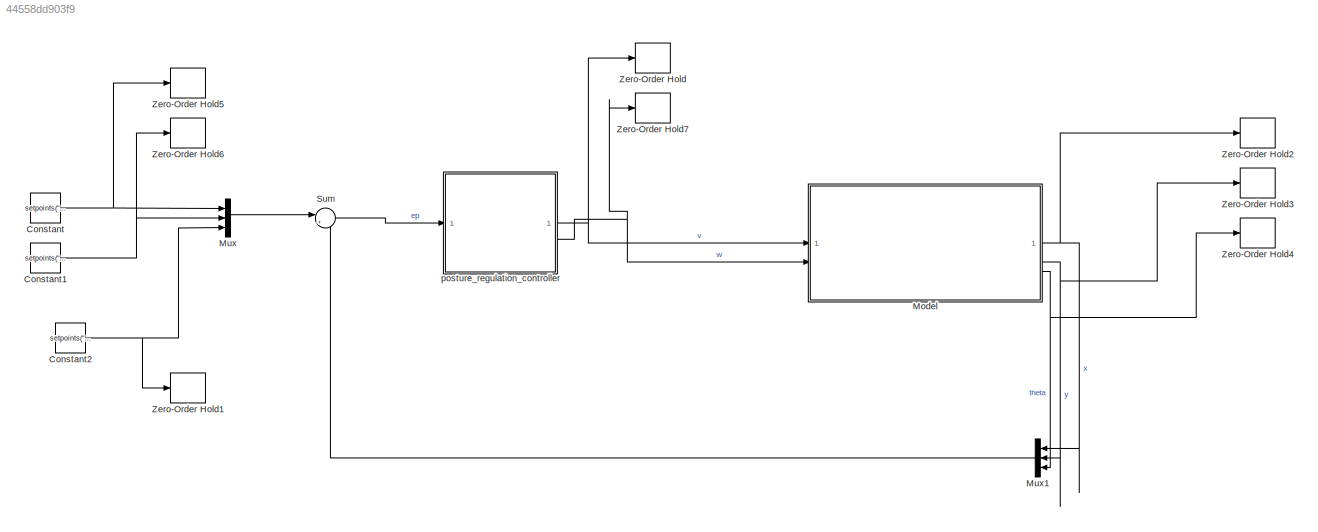
MODEL slx_44558dd903f9
KIND model
CONFIG AbsTol = auto
CONFIG EnableMultiTasking = off
CONFIG FixedStep = auto
CONFIG MaxStep = auto
CONFIG MinStep = auto
CONFIG RelTol = 1e-3
CONFIG SampleTimeConstraint = Unconstrained
CONFIG SolverName = VariableStepAuto
CONFIG StartTime = 0.0
CONFIG StopTime = 10.0
BLOCK [Constant] Constant
  Value = setpoints("setpoint"+sim_trajectory_id).x
BLOCK [Constant] Constant1
  Value = setpoints("setpoint"+sim_trajectory_id).y
BLOCK [Constant] Constant2
  Value = setpoints("setpoint"+sim_trajectory_id).angle
BLOCK [ModelReference] Model
  ModelNameDialog = unicycle.slx
  ModelReferenceVersion = 1.12
  PortSchema = {"entries":[{"content":{"sides":[{"content":{"connectorIds":["In1","In2","In3","In4"]},"type":"ConnectorPlacement.EquallySpacedRectSide","uuid":"ad25d81c-9301-4260-b0e7-6964e2a4144d"},{"content":{"connectorIds":["Out1","Out2","Out3","Out5","Out6","Out7","Out8"],"side":"RIGHT"},"type":"ConnectorPlacement.EquallySpacedRectSide","uuid":"e119e278-1a19-4d21-ac57-f30b4b2846c4"},{"content":{"side":"TOP"}...<+432ch>
BLOCK [Mux] Mux
  DisplayOption = bar
  Inputs = 3
BLOCK [Mux] Mux1
  DisplayOption = bar
  Inputs = 3
  NameLocation = top
BLOCK [Sum] Sum
  Inputs = |+-
BLOCK [ZeroOrderHold] Zero-Order Hold
  SampleTime = Ts
BLOCK [ZeroOrderHold] Zero-Order Hold1
  SampleTime = Ts
BLOCK [ZeroOrderHold] Zero-Order Hold2
  SampleTime = Ts
BLOCK [ZeroOrderHold] Zero-Order Hold3
  SampleTime = Ts
BLOCK [ZeroOrderHold] Zero-Order Hold4
  SampleTime = Ts
BLOCK [ZeroOrderHold] Zero-Order Hold5
  SampleTime = Ts
BLOCK [ZeroOrderHold] Zero-Order Hold6
  SampleTime = Ts
BLOCK [ZeroOrderHold] Zero-Order Hold7
  SampleTime = Ts
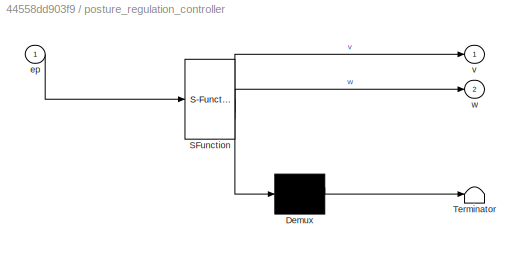
BLOCK [SubSystem] posture_regulation_controller
  ErrorFcn = Stateflow.Translate.translate
  PermitHierarchicalResolution = ExplicitOnly
  SFBlockType = MATLAB Function
  TreatAsAtomicUnit = on
BLOCK [Demux] posture_regulation_controller/ Demux 
  Outputs = 1
BLOCK [S-Function] posture_regulation_controller/ SFunction 
  EnableBusSupport = off
  FunctionName = sf_sfun
  PortCounts = [1 3]
  SFcnIsStateOwnerBlock = off
  SFunctionDeploymentMode = off
  Tag = Stateflow S-Function 1
BLOCK [Terminator] posture_regulation_controller/ Terminator 
BLOCK [Inport] posture_regulation_controller/ep
BLOCK [Outport] posture_regulation_controller/v
BLOCK [Outport] posture_regulation_controller/w
  Port = 2
NET Constant1:1 -> Mux:2, Zero-Order Hold6:1
NET Constant2:1 -> Mux:3, Zero-Order Hold1:1
NET Constant:1 -> Mux:1, Zero-Order Hold5:1
NET Model:1 -> Mux1:1, Zero-Order Hold2:1
NET Model:2 -> Mux1:2, Zero-Order Hold3:1
NET Model:3 -> Mux1:3, Zero-Order Hold4:1
LINE Mux1:1 -> Sum:2
LINE Mux:1 -> Sum:1
LINE Sum:1 -> posture_regulation_controller:1
NET posture_regulation_controller:1 -> Model:1, Zero-Order Hold:1
NET posture_regulation_controller:2 -> Model:2, Zero-Order Hold7:1
note: NET lines group one-source signal fan-out (src -> all destinations, sorted); 1:1 wires keep LINE
CHART posture_regulation_controller states=1 transitions=1
  STATE_LABEL 'eML_blk_kernel()'
  STATE_LABEL 'SCRIPT:\nfunction [v, w]= fcn(ep)\nx = -ep(1);\ny = -ep(2);\ntheta = -ep(3);\ntheta = wrapToPi(theta);\nrho = sqrt(x^2 + y^2);\ngamma = atan2(y,x) + pi - theta;\ngamma = wrapToPi(gamma);\ndelta = gamma + theta;\ndelta = wrapToPi(delta);\n\nk1 = 10;\nk2 = 20;\nk3 = 15;\nv = k1 * rho * cos(gamma);\nw = k2 * gamma + k1*sin(gamma)*cos(gamma)/gamma*(gamma + k3*delta);\nend\n'
CHART  states=0 transitions=0
